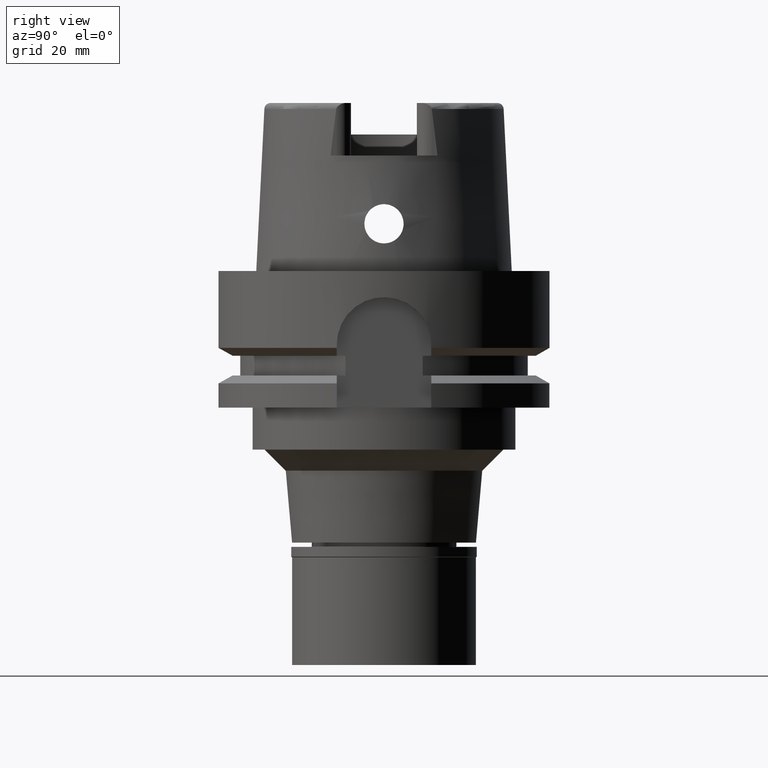
[diagram: clean part render]
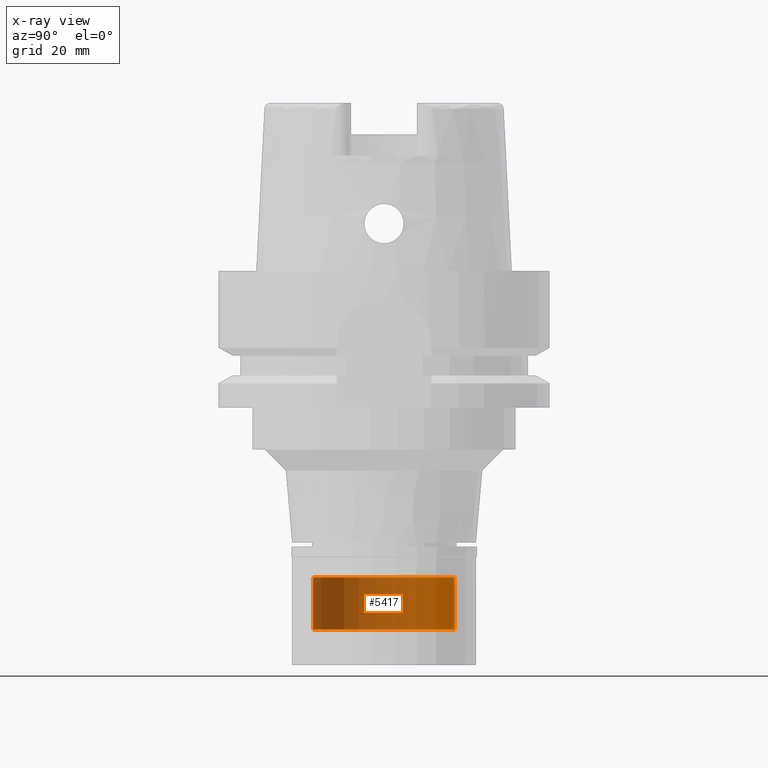
[diagram: x-ray — body ghosted, one internal face saturated and labeled with its STEP entity id]
A machine part, right view, then the same camera in x-ray: the body is ghosted and one INTERNAL B-rep face — a face not visible from any outside direction — is saturated and labeled: STEP entity #5417.
In plain terms, the highlighted cylindrical surface (partial cylindrical patch) has radius 13.5 mm, axis along (0, 0, 1).
Its self-contained STEP definition (entity closure, byte-faithful):
#89 = EDGE_CURVE ( 'NONE', #893, #2377, #4294, .T. ) ;
#239 = CARTESIAN_POINT ( 'NONE',  ( 0.0000000000000000000, 13.50000000000000000, -58.29999999999999716 ) ) ;
#326 = CIRCLE ( 'NONE', #4703, 13.50000000000000000 ) ;
#481 = VECTOR ( 'NONE', #1998, 1000.000000000000000 ) ;
#544 = VERTEX_POINT ( 'NONE', #3869 ) ;
#567 = FACE_OUTER_BOUND ( 'NONE', #1412, .T. ) ;
#598 = DIRECTION ( 'NONE',  ( 0.0000000000000000000, 0.0000000000000000000, -1.000000000000000000 ) ) ;
#629 = CYLINDRICAL_SURFACE ( 'NONE', #2061, 13.50000000000000000 ) ;
#893 = VERTEX_POINT ( 'NONE', #2952 ) ;
#1412 = EDGE_LOOP ( 'NONE', ( #5438, #3078, #4426, #2919 ) ) ;
#1512 = CIRCLE ( 'NONE', #3421, 13.50000000000000000 ) ;
#1998 = DIRECTION ( 'NONE',  ( 0.0000000000000000000, 0.0000000000000000000, -1.000000000000000000 ) ) ;
#2061 = AXIS2_PLACEMENT_3D ( 'NONE', #3147, #2345, #4968 ) ;
#2130 = VECTOR ( 'NONE', #598, 1000.000000000000000 ) ;
#2136 = CARTESIAN_POINT ( 'NONE',  ( 0.0000000000000000000, 13.50000000000000000, -68.29999999999999716 ) ) ;
#2259 = CARTESIAN_POINT ( 'NONE',  ( 0.0000000000000000000, -13.50000000000000000, -58.29999999999999716 ) ) ;
#2345 = DIRECTION ( 'NONE',  ( 0.0000000000000000000, 0.0000000000000000000, 1.000000000000000000 ) ) ;
#2377 = VERTEX_POINT ( 'NONE', #2136 ) ;
#2610 = DIRECTION ( 'NONE',  ( 0.0000000000000000000, -1.000000000000000000, 0.0000000000000000000 ) ) ;
#2919 = ORIENTED_EDGE ( 'NONE', *, *, #89, .T. ) ;
#2952 = CARTESIAN_POINT ( 'NONE',  ( 0.0000000000000000000, 13.50000000000000000, -58.29999999999999716 ) ) ;
#3078 = ORIENTED_EDGE ( 'NONE', *, *, #3846, .F. ) ;
#3147 = CARTESIAN_POINT ( 'NONE',  ( 0.0000000000000000000, 0.0000000000000000000, 0.0000000000000000000 ) ) ;
#3160 = DIRECTION ( 'NONE',  ( 0.0000000000000000000, 1.000000000000000000, 0.0000000000000000000 ) ) ;
#3201 = CARTESIAN_POINT ( 'NONE',  ( 0.0000000000000000000, -13.50000000000000000, -68.29999999999999716 ) ) ;
#3421 = AXIS2_PLACEMENT_3D ( 'NONE', #4265, #3835, #2610 ) ;
#3595 = LINE ( 'NONE', #2259, #2130 ) ;
#3817 = VERTEX_POINT ( 'NONE', #3201 ) ;
#3835 = DIRECTION ( 'NONE',  ( 0.0000000000000000000, 0.0000000000000000000, -1.000000000000000000 ) ) ;
#3846 = EDGE_CURVE ( 'NONE', #544, #3817, #3595, .T. ) ;
#3869 = CARTESIAN_POINT ( 'NONE',  ( 0.0000000000000000000, -13.50000000000000000, -58.29999999999999716 ) ) ;
#4070 = CARTESIAN_POINT ( 'NONE',  ( 0.0000000000000000000, 0.0000000000000000000, -68.29999999999999716 ) ) ;
#4265 = CARTESIAN_POINT ( 'NONE',  ( 0.0000000000000000000, 0.0000000000000000000, -58.29999999999999716 ) ) ;
#4294 = LINE ( 'NONE', #239, #481 ) ;
#4426 = ORIENTED_EDGE ( 'NONE', *, *, #4664, .T. ) ;
#4437 = EDGE_CURVE ( 'NONE', #2377, #3817, #326, .T. ) ;
#4664 = EDGE_CURVE ( 'NONE', #544, #893, #1512, .T. ) ;
#4703 = AXIS2_PLACEMENT_3D ( 'NONE', #4070, #5008, #3160 ) ;
#4968 = DIRECTION ( 'NONE',  ( 0.0000000000000000000, 1.000000000000000000, 0.0000000000000000000 ) ) ;
#5008 = DIRECTION ( 'NONE',  ( 0.0000000000000000000, 0.0000000000000000000, 1.000000000000000000 ) ) ;
#5417 = ADVANCED_FACE ( 'NONE', ( #567 ), #629, .T. ) ;
#5438 = ORIENTED_EDGE ( 'NONE', *, *, #4437, .T. ) ;